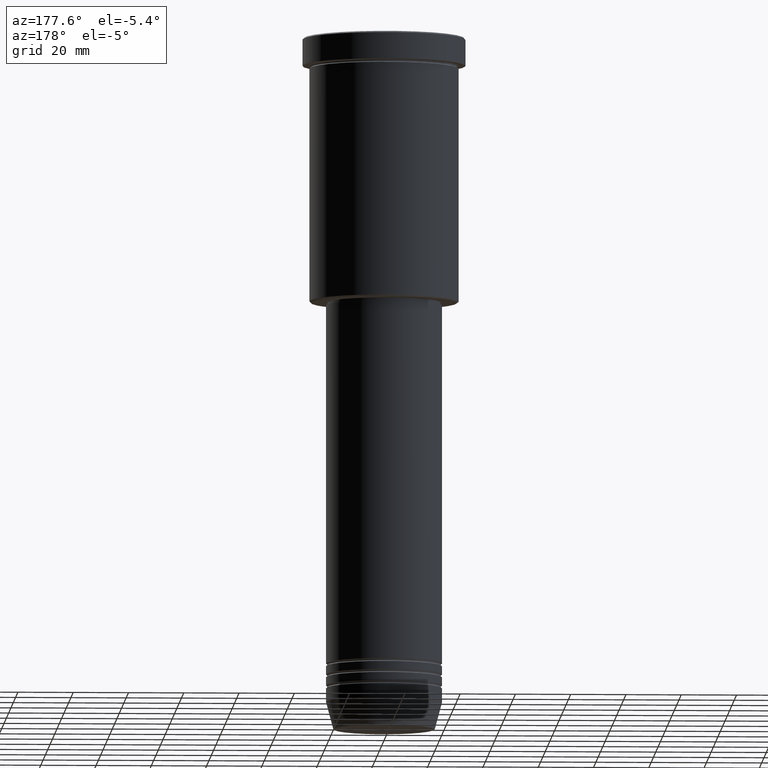
[diagram: clean part render]
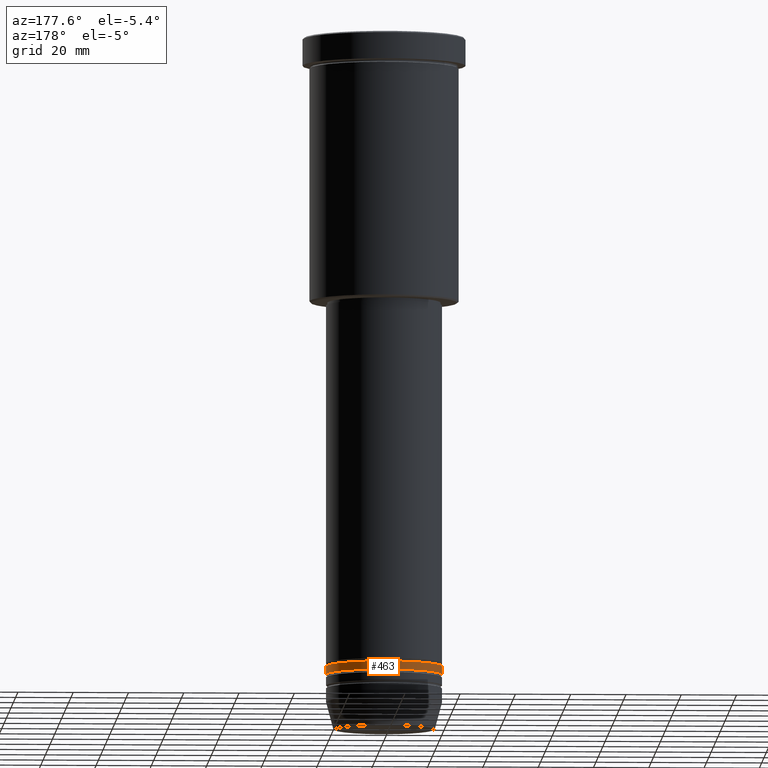
[diagram: same view with one face highlighted and labeled with its STEP entity id]
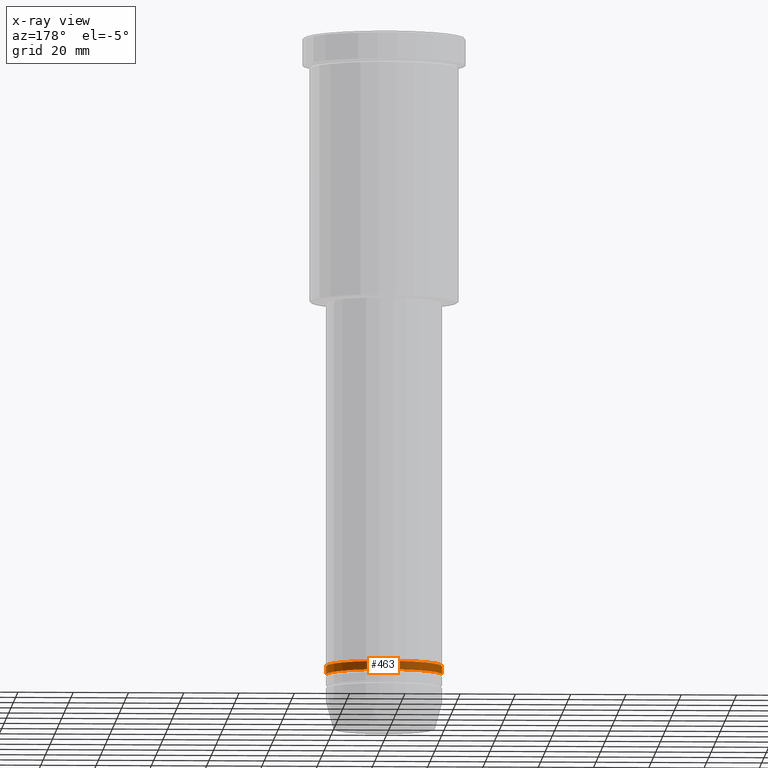
[diagram: x-ray of the same camera — body ghosted, the highlighted face saturated]
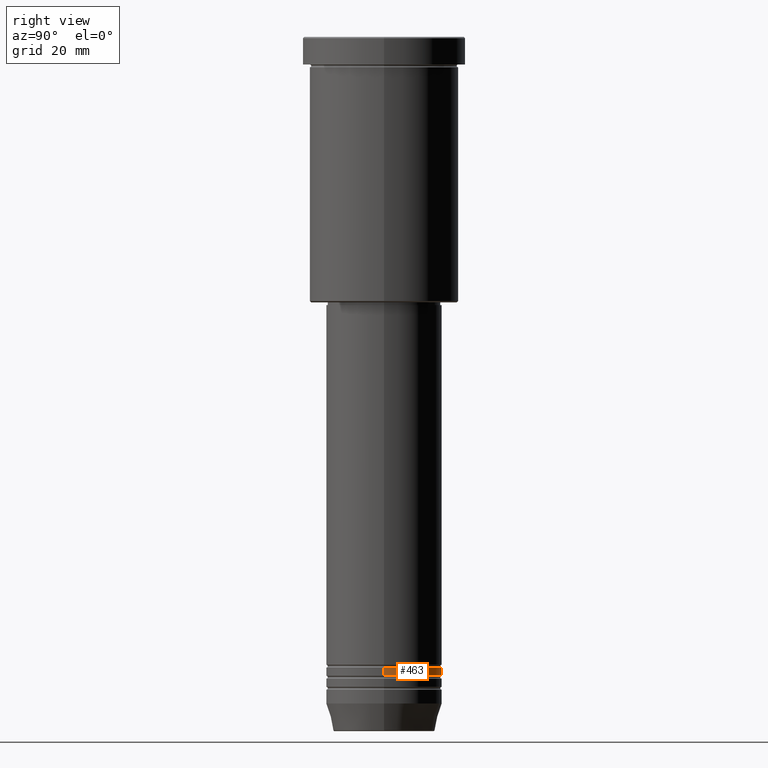
[diagram: same view with one face highlighted and labeled with its STEP entity id]
A machine part, auxiliary view. The second image highlights one B-rep face of the part: STEP entity #463.
The next image is the same camera in x-ray: the body ghosted, the highlighted face saturated — about 0% of this face is hidden behind the body in this view.
A second angle (right view) of the same face is appended — the face is thin or edge-on in the first view.
In plain terms, the highlighted cylindrical surface (partial cylindrical patch) has radius 21 mm, axis along (-0, -0, 1).
Its self-contained STEP definition (entity closure, byte-faithful):
#69 = CARTESIAN_POINT ( 'NONE',  ( 21.00000000000000000, 0.000000000000000000, -227.9999999999998863 ) ) ;
#89 = EDGE_LOOP ( 'NONE', ( #950, #705, #302, #970 ) ) ;
#105 = VECTOR ( 'NONE', #912, 1000.000000000000000 ) ;
#137 = DIRECTION ( 'NONE',  ( -0.000000000000000000, -0.000000000000000000, 1.000000000000000000 ) ) ;
#160 = DIRECTION ( 'NONE',  ( 1.000000000000000000, 0.000000000000000000, 0.000000000000000000 ) ) ;
#184 = EDGE_CURVE ( 'NONE', #1051, #696, #1167, .T. ) ;
#242 = DIRECTION ( 'NONE',  ( -0.000000000000000000, -0.000000000000000000, 1.000000000000000000 ) ) ;
#253 = LINE ( 'NONE', #1149, #382 ) ;
#302 = ORIENTED_EDGE ( 'NONE', *, *, #184, .F. ) ;
#355 = DIRECTION ( 'NONE',  ( 1.000000000000000000, 0.000000000000000000, 0.000000000000000000 ) ) ;
#356 = EDGE_CURVE ( 'NONE', #877, #1051, #996, .T. ) ;
#382 = VECTOR ( 'NONE', #894, 1000.000000000000000 ) ;
#453 = CARTESIAN_POINT ( 'NONE',  ( -21.00000000000000000, 2.571758278209441661E-15, -227.9999999999998863 ) ) ;
#463 = ADVANCED_FACE ( 'NONE', ( #486 ), #961, .T. ) ;
#486 = FACE_OUTER_BOUND ( 'NONE', #89, .T. ) ;
#500 = AXIS2_PLACEMENT_3D ( 'NONE', #967, #875, #160 ) ;
#503 = CARTESIAN_POINT ( 'NONE',  ( 0.000000000000000000, 0.000000000000000000, 0.000000000000000000 ) ) ;
#542 = CARTESIAN_POINT ( 'NONE',  ( 21.00000000000000355, 0.000000000000000000, 0.000000000000000000 ) ) ;
#568 = EDGE_CURVE ( 'NONE', #685, #696, #253, .T. ) ;
#590 = DIRECTION ( 'NONE',  ( 1.000000000000000000, 0.000000000000000000, 0.000000000000000000 ) ) ;
#685 = VERTEX_POINT ( 'NONE', #1089 ) ;
#689 = AXIS2_PLACEMENT_3D ( 'NONE', #895, #242, #355 ) ;
#696 = VERTEX_POINT ( 'NONE', #453 ) ;
#705 = ORIENTED_EDGE ( 'NONE', *, *, #568, .T. ) ;
#842 = CIRCLE ( 'NONE', #500, 21.00000000000000355 ) ;
#875 = DIRECTION ( 'NONE',  ( -0.000000000000000000, -0.000000000000000000, 1.000000000000000000 ) ) ;
#877 = VERTEX_POINT ( 'NONE', #1123 ) ;
#894 = DIRECTION ( 'NONE',  ( -0.000000000000000000, -0.000000000000000000, 1.000000000000000000 ) ) ;
#895 = CARTESIAN_POINT ( 'NONE',  ( 0.000000000000000000, 0.000000000000000000, -227.9999999999998863 ) ) ;
#912 = DIRECTION ( 'NONE',  ( -0.000000000000000000, -0.000000000000000000, 1.000000000000000000 ) ) ;
#926 = AXIS2_PLACEMENT_3D ( 'NONE', #503, #137, #590 ) ;
#950 = ORIENTED_EDGE ( 'NONE', *, *, #1025, .T. ) ;
#961 = CYLINDRICAL_SURFACE ( 'NONE', #926, 21.00000000000000355 ) ;
#967 = CARTESIAN_POINT ( 'NONE',  ( 0.000000000000000000, 0.000000000000000000, -230.9999999999999147 ) ) ;
#970 = ORIENTED_EDGE ( 'NONE', *, *, #356, .F. ) ;
#996 = LINE ( 'NONE', #542, #105 ) ;
#1025 = EDGE_CURVE ( 'NONE', #877, #685, #842, .T. ) ;
#1051 = VERTEX_POINT ( 'NONE', #69 ) ;
#1089 = CARTESIAN_POINT ( 'NONE',  ( -21.00000000000000355, 2.571758278209442056E-15, -230.9999999999999147 ) ) ;
#1123 = CARTESIAN_POINT ( 'NONE',  ( 21.00000000000000355, 0.000000000000000000, -230.9999999999999147 ) ) ;
#1149 = CARTESIAN_POINT ( 'NONE',  ( -21.00000000000000355, 2.571758278209442056E-15, 0.000000000000000000 ) ) ;
#1167 = CIRCLE ( 'NONE', #689, 21.00000000000000000 ) ;